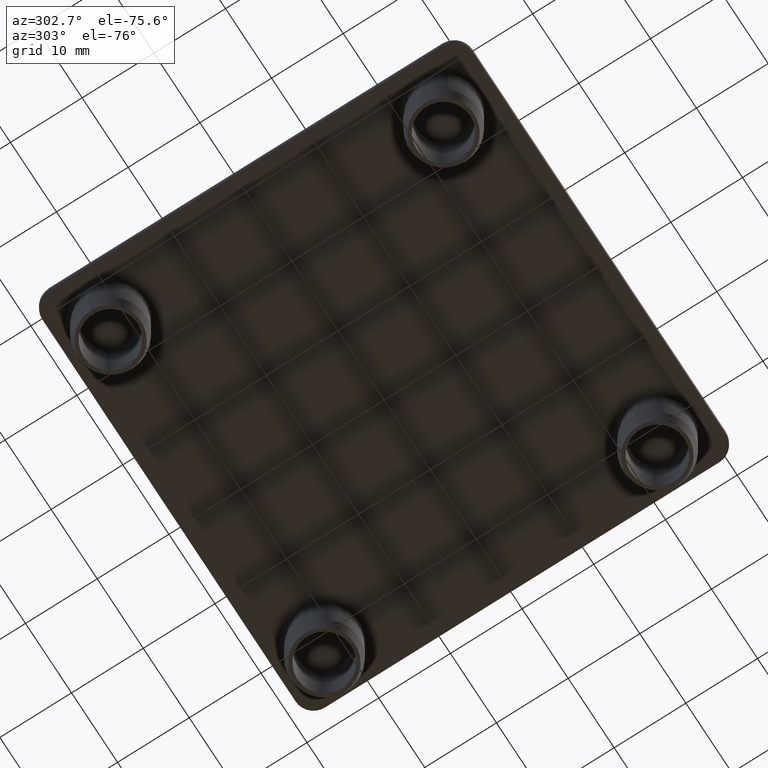
[diagram: clean part render]
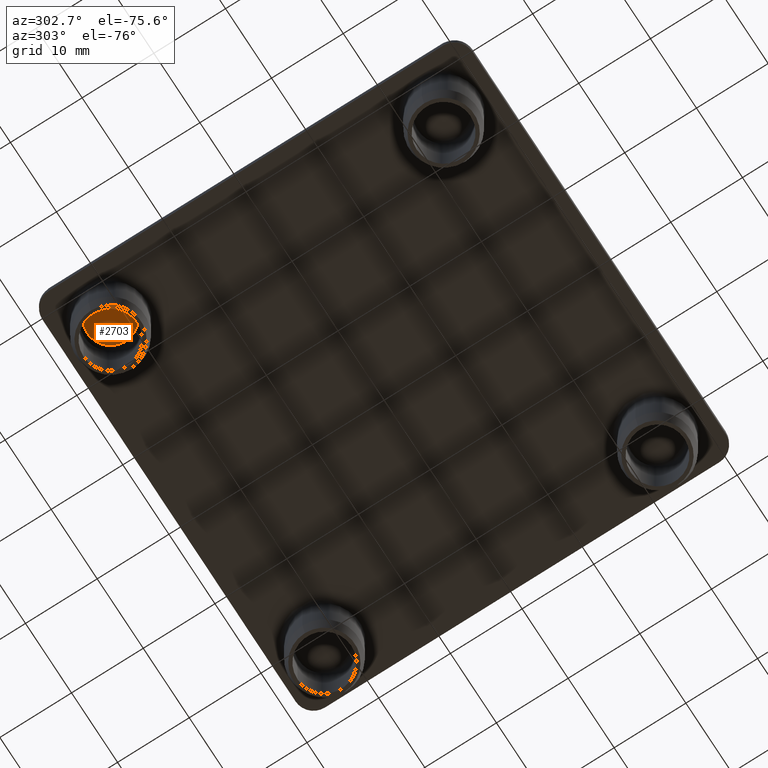
[diagram: same view with one face highlighted and labeled with its STEP entity id]
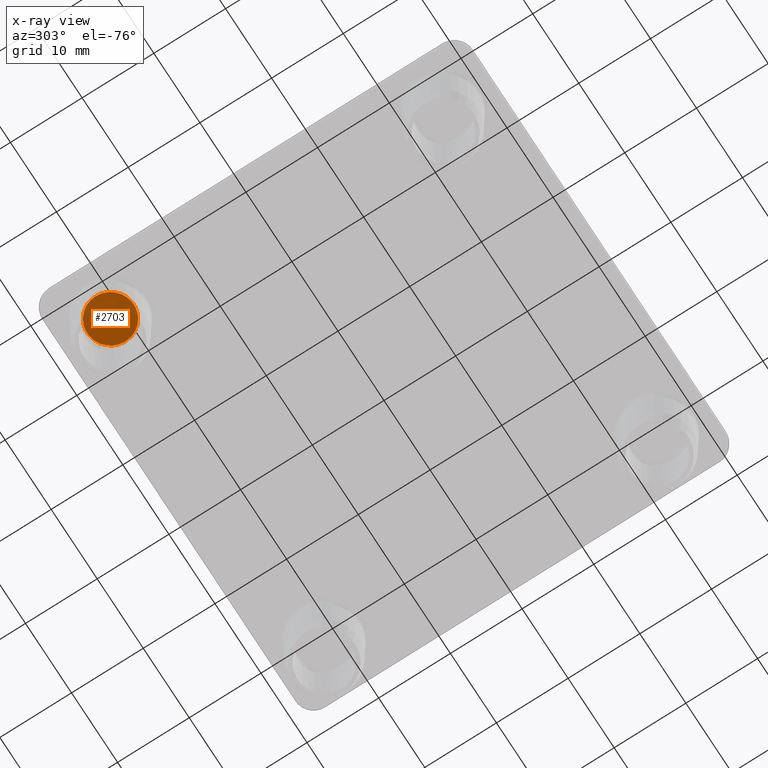
[diagram: x-ray of the same camera — body ghosted, the highlighted face saturated]
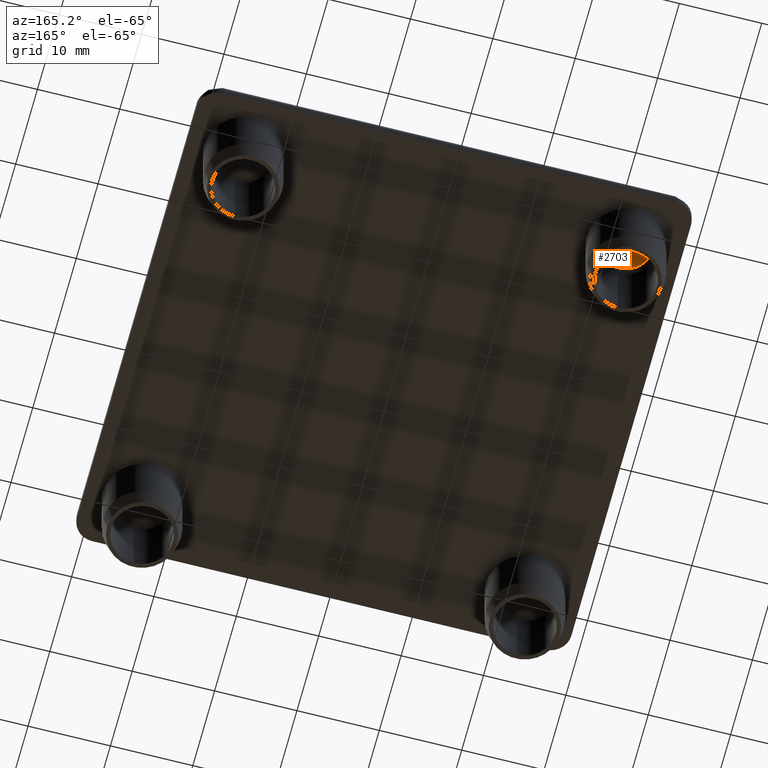
[diagram: same view with one face highlighted and labeled with its STEP entity id]
A machine part, auxiliary view. The second image highlights one B-rep face of the part: STEP entity #2703.
The next image is the same camera in x-ray: the body ghosted, the highlighted face saturated — about 23% of this face is hidden behind the body in this view.
A second angle (auxiliary view) of the same face is appended — the face is thin or edge-on in the first view.
In plain terms, the highlighted planar face has unit normal (0, 0, 1).
Its self-contained STEP definition (entity closure, byte-faithful):
#290=CARTESIAN_POINT('',(-26.479999999999990,53.230000000000004,-1.776357E-015));
#291=VERTEX_POINT('',#290);
#299=CARTESIAN_POINT('',(-19.980000000000004,53.230000000000004,-8.881784E-016));
#300=VERTEX_POINT('',#299);
#301=CARTESIAN_POINT('',(-23.229999999999990,53.230000000000004,-1.332268E-015));
#302=DIRECTION('',(1.224647E-016,0.0,-1.0));
#303=DIRECTION('',(1.0,0.0,1.224647E-016));
#304=AXIS2_PLACEMENT_3D('',#301,#302,#303);
#305=CIRCLE('',#304,3.250000000000000);
#306=EDGE_CURVE('',#300,#291,#305,.T.);
#2688=CARTESIAN_POINT('',(-26.804999999999993,49.655000000000001,-1.776357E-015));
#2689=DIRECTION('',(0.0,0.0,1.0));
#2690=DIRECTION('',(1.0,0.0,0.0));
#2691=AXIS2_PLACEMENT_3D('',#2688,#2689,#2690);
#2692=PLANE('',#2691);
#2693=ORIENTED_EDGE('',*,*,#306,.T.);
#2694=CARTESIAN_POINT('',(-23.229999999999990,53.230000000000004,-1.332268E-015));
#2695=DIRECTION('',(1.224647E-016,0.0,-1.0));
#2696=DIRECTION('',(1.0,0.0,1.224647E-016));
#2697=AXIS2_PLACEMENT_3D('',#2694,#2695,#2696);
#2698=CIRCLE('',#2697,3.250000000000000);
#2699=EDGE_CURVE('',#291,#300,#2698,.T.);
#2700=ORIENTED_EDGE('',*,*,#2699,.T.);
#2701=EDGE_LOOP('',(#2693,#2700));
#2702=FACE_OUTER_BOUND('',#2701,.T.);
#2703=ADVANCED_FACE('',(#2702),#2692,.F.);